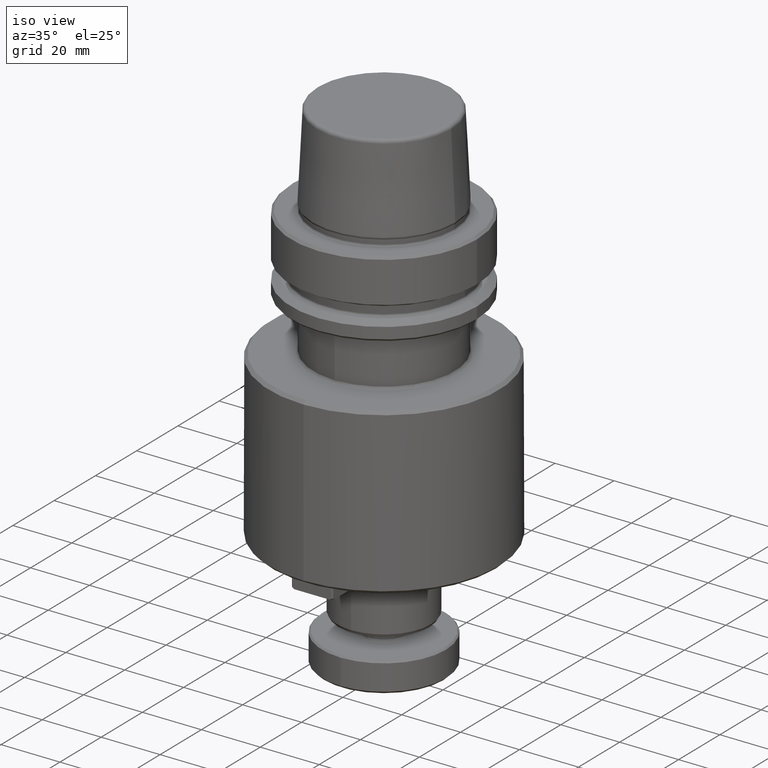
[diagram: clean part render]
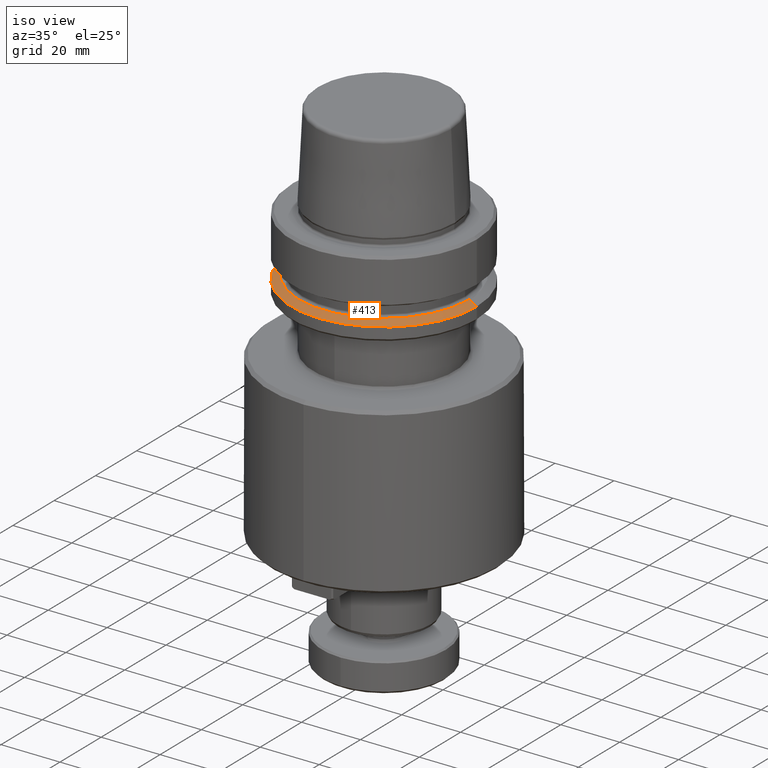
[diagram: same view with one face highlighted and labeled with its STEP entity id]
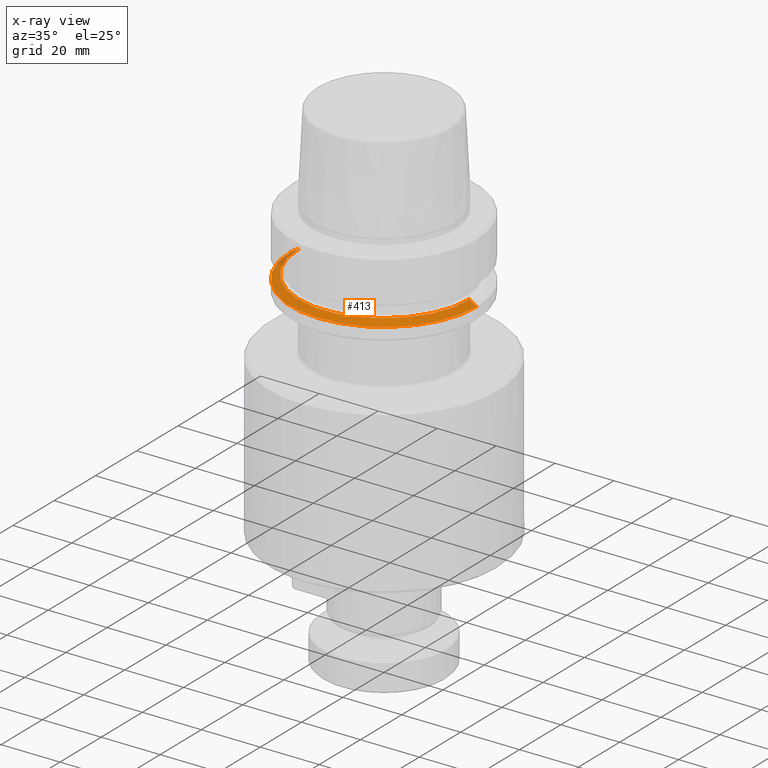
[diagram: x-ray of the same camera — body ghosted, the highlighted face saturated]
A machine part, iso view. The second image highlights one B-rep face of the part: STEP entity #413.
The next image is the same camera in x-ray: the body ghosted, the highlighted face saturated — about 3% of this face is hidden behind the body in this view.
In plain terms, the highlighted conical surface has half-angle 60 deg.
Its self-contained STEP definition (entity closure, byte-faithful):
#138 = VERTEX_POINT ( 'NONE', #2569 ) ;
#198 = DIRECTION ( 'NONE',  ( 0.8660254037844387100, 1.060575238724906900E-016, -0.4999999999999998900 ) ) ;
#214 = EDGE_CURVE ( 'NONE', #3163, #1917, #1877, .T. ) ;
#267 = CARTESIAN_POINT ( 'NONE',  ( -31.50000000000158100, 0.0000000000000000000, -21.40096708335798000 ) ) ;
#341 = CIRCLE ( 'NONE', #750, 31.50000000000158100 ) ;
#410 = CARTESIAN_POINT ( 'NONE',  ( 0.0000000000000000000, 0.0000000000000000000, -19.92346800859827400 ) ) ;
#413 = ADVANCED_FACE ( 'NONE', ( #2777 ), #567, .T. ) ;
#553 = EDGE_CURVE ( 'NONE', #3163, #138, #956, .T. ) ;
#554 = DIRECTION ( 'NONE',  ( 0.0000000000000000000, 0.0000000000000000000, -1.000000000000000000 ) ) ;
#567 = CONICAL_SURFACE ( 'NONE', #1747, 31.50000000000158100, 1.047197551196597900 ) ;
#644 = ORIENTED_EDGE ( 'NONE', *, *, #214, .T. ) ;
#673 = DIRECTION ( 'NONE',  ( 1.000000000000000000, 0.0000000000000000000, 0.0000000000000000000 ) ) ;
#737 = EDGE_CURVE ( 'NONE', #138, #1245, #1540, .T. ) ;
#750 = AXIS2_PLACEMENT_3D ( 'NONE', #3069, #1494, #3332 ) ;
#948 = ORIENTED_EDGE ( 'NONE', *, *, #553, .F. ) ;
#953 = AXIS2_PLACEMENT_3D ( 'NONE', #410, #2288, #673 ) ;
#956 = CIRCLE ( 'NONE', #953, 28.94089653438176400 ) ;
#1071 = DIRECTION ( 'NONE',  ( -0.8660254037844387100, 0.0000000000000000000, -0.4999999999999998900 ) ) ;
#1073 = VECTOR ( 'NONE', #1071, 1000.000000000000000 ) ;
#1106 = CARTESIAN_POINT ( 'NONE',  ( 0.0000000000000000000, 0.0000000000000000000, -21.40096708335798000 ) ) ;
#1245 = VERTEX_POINT ( 'NONE', #2871 ) ;
#1494 = DIRECTION ( 'NONE',  ( -0.0000000000000000000, -0.0000000000000000000, 1.000000000000000000 ) ) ;
#1523 = CARTESIAN_POINT ( 'NONE',  ( 31.50000000000158100, 3.857637417314356700E-015, -21.40096708335798000 ) ) ;
#1540 = LINE ( 'NONE', #1523, #2168 ) ;
#1640 = CARTESIAN_POINT ( 'NONE',  ( -31.50000000000158100, 3.857637417314356700E-015, -21.40096708335798000 ) ) ;
#1721 = EDGE_CURVE ( 'NONE', #1917, #1245, #341, .T. ) ;
#1747 = AXIS2_PLACEMENT_3D ( 'NONE', #1106, #554, #2167 ) ;
#1877 = LINE ( 'NONE', #267, #1073 ) ;
#1917 = VERTEX_POINT ( 'NONE', #1640 ) ;
#2167 = DIRECTION ( 'NONE',  ( -1.000000000000000000, 0.0000000000000000000, 0.0000000000000000000 ) ) ;
#2168 = VECTOR ( 'NONE', #198, 1000.000000000000000 ) ;
#2288 = DIRECTION ( 'NONE',  ( -0.0000000000000000000, -0.0000000000000000000, 1.000000000000000000 ) ) ;
#2393 = ORIENTED_EDGE ( 'NONE', *, *, #737, .F. ) ;
#2569 = CARTESIAN_POINT ( 'NONE',  ( 28.94089653438176400, 3.700937523921445900E-015, -19.92346800859827400 ) ) ;
#2777 = FACE_OUTER_BOUND ( 'NONE', #3161, .T. ) ;
#2871 = CARTESIAN_POINT ( 'NONE',  ( 31.50000000000158100, 0.0000000000000000000, -21.40096708335798000 ) ) ;
#3069 = CARTESIAN_POINT ( 'NONE',  ( 0.0000000000000000000, 0.0000000000000000000, -21.40096708335798000 ) ) ;
#3099 = CARTESIAN_POINT ( 'NONE',  ( -28.94089653438176400, 0.0000000000000000000, -19.92346800859827400 ) ) ;
#3161 = EDGE_LOOP ( 'NONE', ( #2393, #948, #644, #3275 ) ) ;
#3163 = VERTEX_POINT ( 'NONE', #3099 ) ;
#3275 = ORIENTED_EDGE ( 'NONE', *, *, #1721, .T. ) ;
#3332 = DIRECTION ( 'NONE',  ( 1.000000000000000000, 0.0000000000000000000, 0.0000000000000000000 ) ) ;